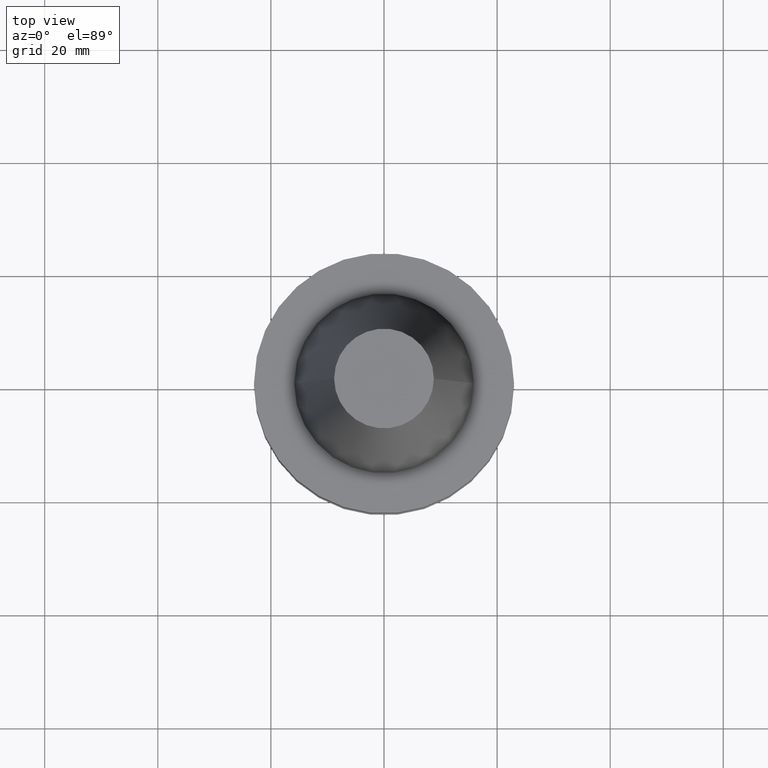
[diagram: clean part render]
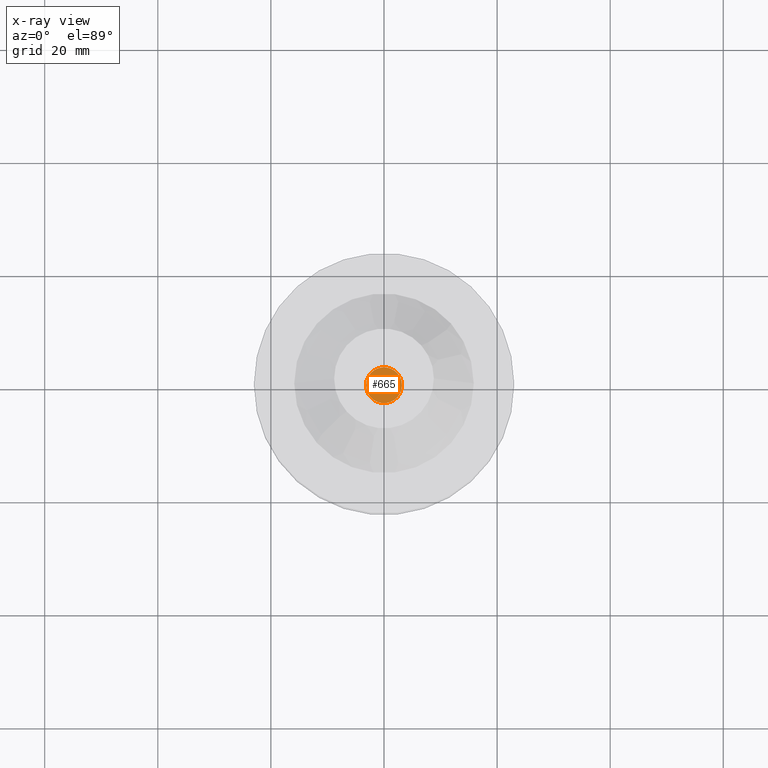
[diagram: x-ray — body ghosted, one internal face saturated and labeled with its STEP entity id]
A machine part, top view, then the same camera in x-ray: the body is ghosted and one INTERNAL B-rep face — a face not visible from any outside direction — is saturated and labeled: STEP entity #665.
In plain terms, the highlighted planar face has unit normal (0, -0, 1).
Its self-contained STEP definition (entity closure, byte-faithful):
#45 = CIRCLE ( 'NONE', #492, 3.174999999999994049 ) ;
#53 = DIRECTION ( 'NONE',  ( -0.000000000000000000, -0.000000000000000000, 1.000000000000000000 ) ) ;
#114 = CARTESIAN_POINT ( 'NONE',  ( 0.000000000000000000, 0.000000000000000000, -21.00000000000000355 ) ) ;
#118 = EDGE_CURVE ( 'NONE', #229, #159, #177, .T. ) ;
#159 = VERTEX_POINT ( 'NONE', #663 ) ;
#177 = CIRCLE ( 'NONE', #367, 3.174999999999994049 ) ;
#181 = DIRECTION ( 'NONE',  ( 1.000000000000000000, 0.000000000000000000, 0.000000000000000000 ) ) ;
#229 = VERTEX_POINT ( 'NONE', #548 ) ;
#239 = PLANE ( 'NONE',  #567 ) ;
#242 = ORIENTED_EDGE ( 'NONE', *, *, #118, .F. ) ;
#248 = FACE_OUTER_BOUND ( 'NONE', #736, .T. ) ;
#288 = DIRECTION ( 'NONE',  ( -0.000000000000000000, -0.000000000000000000, 1.000000000000000000 ) ) ;
#356 = CARTESIAN_POINT ( 'NONE',  ( 0.000000000000000000, 22.99999999999999289, -20.99999999999999645 ) ) ;
#367 = AXIS2_PLACEMENT_3D ( 'NONE', #582, #53, #181 ) ;
#419 = DIRECTION ( 'NONE',  ( 0.000000000000000000, -0.000000000000000000, 1.000000000000000000 ) ) ;
#469 = DIRECTION ( 'NONE',  ( 1.000000000000000000, 0.000000000000000000, 0.000000000000000000 ) ) ;
#487 = DIRECTION ( 'NONE',  ( 1.000000000000000000, 0.000000000000000000, 0.000000000000000000 ) ) ;
#492 = AXIS2_PLACEMENT_3D ( 'NONE', #114, #288, #469 ) ;
#548 = CARTESIAN_POINT ( 'NONE',  ( 3.174999999999994049, 0.000000000000000000, -21.00000000000000355 ) ) ;
#562 = EDGE_CURVE ( 'NONE', #159, #229, #45, .T. ) ;
#567 = AXIS2_PLACEMENT_3D ( 'NONE', #356, #419, #487 ) ;
#578 = ORIENTED_EDGE ( 'NONE', *, *, #562, .F. ) ;
#582 = CARTESIAN_POINT ( 'NONE',  ( 0.000000000000000000, 0.000000000000000000, -21.00000000000000355 ) ) ;
#663 = CARTESIAN_POINT ( 'NONE',  ( -3.174999999999994049, 3.888253587292840658E-16, -21.00000000000000355 ) ) ;
#665 = ADVANCED_FACE ( 'NONE', ( #248 ), #239, .F. ) ;
#736 = EDGE_LOOP ( 'NONE', ( #242, #578 ) ) ;